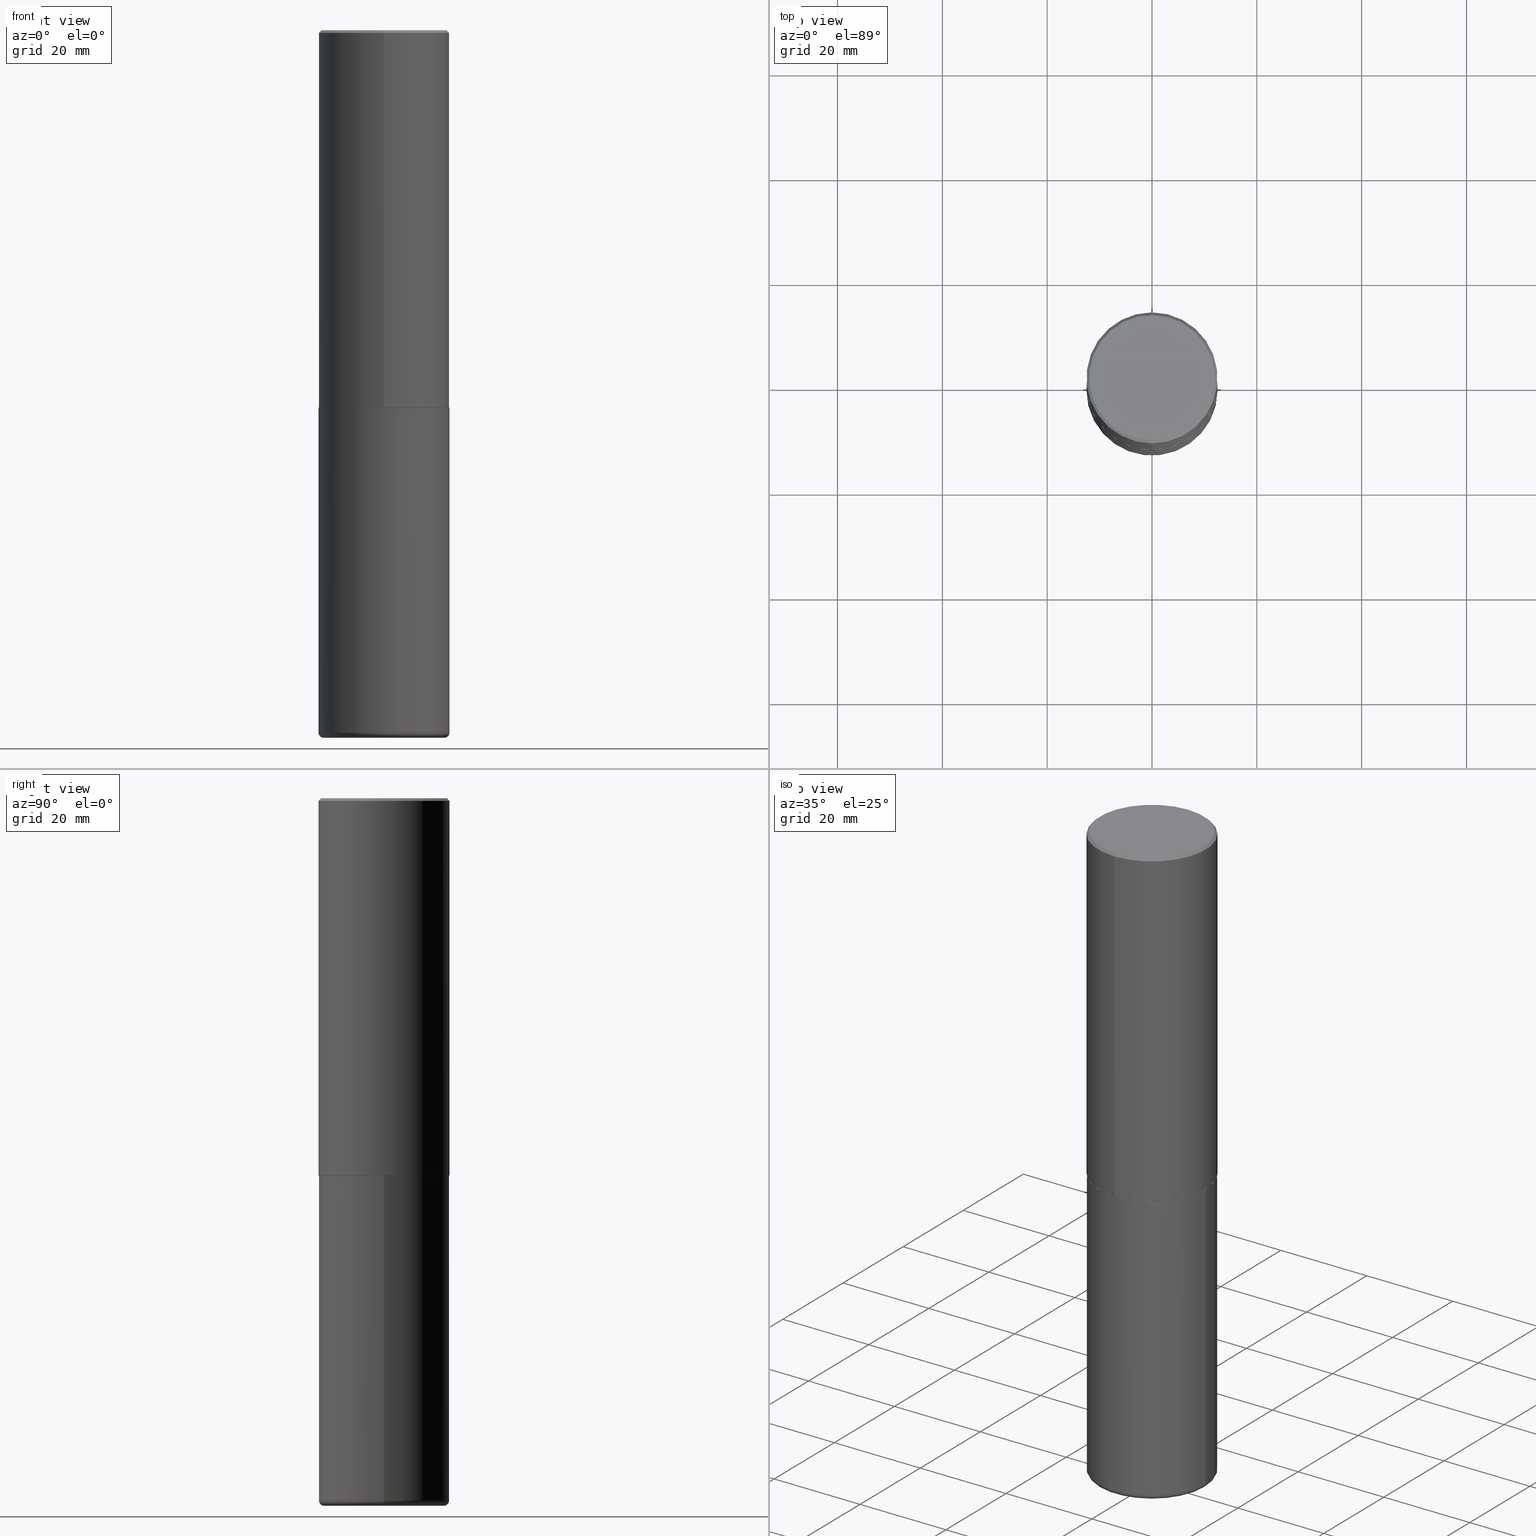
[diagram: canonical four-view strip — front | top / right | iso, engineering-drawing reading convention]
A machine part, canonical four-view strip (front | top / right | iso — engineering-drawing reading convention). The complete STEP part file that produces these views, byte-faithful:
ISO-10303-21;
HEADER;
FILE_DESCRIPTION (( 'STEP AP203' ),
    '1' );
FILE_NAME ('74871.STEP',
    '2024-05-02T19:25:47',
    ( '' ),
    ( '' ),
    'SwSTEP 2.0',
    'SolidWorks 2023',
    '' );
FILE_SCHEMA (( 'CONFIG_CONTROL_DESIGN' ));
ENDSEC;

DATA;
#1 = DATE_AND_TIME ( #23, #417 ) ;
#2 = CARTESIAN_POINT ( 'NONE',  ( -3.376394089603258656E-15, -0.4921500000000000874, -0.01999999999999838712 ) ) ;
#3 = APPROVAL_STATUS ( 'not_yet_approved' ) ;
#4 = DIRECTION ( 'NONE',  ( -2.445468806185136877E-29, 3.491481338843145188E-15, 1.000000000000000000 ) ) ;
#5 = AXIS2_PLACEMENT_3D ( 'NONE', #224, #93, #196 ) ;
#6 = VECTOR ( 'NONE', #58, 39.37007874015748143 ) ;
#7 = CARTESIAN_POINT ( 'NONE',  ( 0.000000000000000000, 0.000000000000000000, 0.000000000000000000 ) ) ;
#8 = VECTOR ( 'NONE', #300, 39.37007874015748143 ) ;
#9 = DESIGN_CONTEXT ( 'detailed design', #323, 'design' ) ;
#10 = CARTESIAN_POINT ( 'NONE',  ( 6.929045905378983914E-29, -9.894783109142616722E-15, -2.833700000000000330 ) ) ;
#11 = CARTESIAN_POINT ( 'NONE',  ( -3.436665081823228329E-15, -0.4921500000000101904, -2.833699999999998997 ) ) ;
#12 = PLANE ( 'NONE',  #49 ) ;
#13 = DIRECTION ( 'NONE',  ( -6.982962677686265922E-15, -1.000000000000000000, 3.495297233588267070E-15 ) ) ;
#14 = VERTEX_POINT ( 'NONE', #50 ) ;
#15 = ORIENTED_EDGE ( 'NONE', *, *, #271, .F. ) ;
#16 = LINE ( 'NONE', #142, #185 ) ;
#17 = ORIENTED_EDGE ( 'NONE', *, *, #106, .T. ) ;
#18 = FACE_OUTER_BOUND ( 'NONE', #134, .T. ) ;
#19 = AXIS2_PLACEMENT_3D ( 'NONE', #354, #125, #321 ) ;
#20 = ORIENTED_EDGE ( 'NONE', *, *, #337, .T. ) ;
#21 = EDGE_CURVE ( 'NONE', #303, #226, #397, .T. ) ;
#22 = LINE ( 'NONE', #170, #8 ) ;
#23 = CALENDAR_DATE ( 2024, 2, 5 ) ;
#24 = CONICAL_SURFACE ( 'NONE', #261, 0.4911499999999999755, 0.7853981633977213939 ) ;
#25 = CIRCLE ( 'NONE', #388, 0.4921500000000003094 ) ;
#26 = COORDINATED_UNIVERSAL_TIME_OFFSET ( 5, 0, .BEHIND. ) ;
#27 = COORDINATED_UNIVERSAL_TIME_OFFSET ( 5, 0, .BEHIND. ) ;
#28 = DIRECTION ( 'NONE',  ( -2.445229172240879899E-29, 3.491824508290438219E-15, 1.000000000000000000 ) ) ;
#29 = DATE_AND_TIME ( #322, #363 ) ;
#30 = DIRECTION ( 'NONE',  ( 1.000000000000000000, -6.982962677686266711E-15, 0.000000000000000000 ) ) ;
#31 = PERSON_AND_ORGANIZATION_ROLE ( 'design_supplier' ) ;
#32 = DIRECTION ( 'NONE',  ( -6.982962677686265922E-15, -1.000000000000000000, 3.330506545156063891E-15 ) ) ;
#33 = AXIS2_PLACEMENT_3D ( 'NONE', #229, #35, #218 ) ;
#34 = DIRECTION ( 'NONE',  ( 1.000000000000000000, -6.982962677686262766E-15, 4.883557194083111219E-29 ) ) ;
#35 = DIRECTION ( 'NONE',  ( 2.445229172240879339E-29, -3.491824508290438613E-15, -1.000000000000000000 ) ) ;
#36 = ORIENTED_EDGE ( 'NONE', *, *, #337, .F. ) ;
#37 = VERTEX_POINT ( 'NONE', #85 ) ;
#38 = DIRECTION ( 'NONE',  ( -6.982962677686266711E-15, -1.000000000000000000, 3.491824508290437824E-15 ) ) ;
#39 = ADVANCED_FACE ( 'NONE', ( #200 ), #266, .T. ) ;
#40 = CIRCLE ( 'NONE', #19, 0.4921499999999999764 ) ;
#41 = CARTESIAN_POINT ( 'NONE',  ( 6.931491134551223323E-29, -9.898274933650907147E-15, -2.834700000000000220 ) ) ;
#42 = LOCAL_TIME ( 15, 25, 47.00000000000000000, #52 ) ;
#43 = ORIENTED_EDGE ( 'NONE', *, *, #51, .F. ) ;
#44 = CONICAL_SURFACE ( 'NONE', #351, 0.4911499999999999755, 0.7853981633977213939 ) ;
#45 = DIRECTION ( 'NONE',  ( -2.445229172240879899E-29, 3.491824508290438613E-15, 1.000000000000000000 ) ) ;
#46 = CARTESIAN_POINT ( 'NONE',  ( -3.436665081823297354E-15, -0.4921500000000001984, 1.718501431755139742E-15 ) ) ;
#47 = EDGE_LOOP ( 'NONE', ( #72, #372, #393, #110 ) ) ;
#48 = CARTESIAN_POINT ( 'NONE',  ( 3.493383360364602601E-15, 0.4911499999999900390, -2.834700000000001996 ) ) ;
#49 = AXIS2_PLACEMENT_3D ( 'NONE', #41, #79, #139 ) ;
#50 = CARTESIAN_POINT ( 'NONE',  ( -0.4921499999999999764, -1.066154447716645114E-14, -2.834700000000000220 ) ) ;
#51 = EDGE_CURVE ( 'NONE', #149, #235, #395, .T. ) ;
#52 = COORDINATED_UNIVERSAL_TIME_OFFSET ( 5, 0, .BEHIND. ) ;
#53 = DIRECTION ( 'NONE',  ( -6.982962677686265922E-15, -1.000000000000000000, 3.337287582609300506E-15 ) ) ;
#54 = ADVANCED_FACE ( 'NONE', ( #334 ), #44, .T. ) ;
#55 = AXIS2_PLACEMENT_3D ( 'NONE', #74, #113, #234 ) ;
#56 = PERSON_AND_ORGANIZATION ( #158, #309 ) ;
#57 = EDGE_CURVE ( 'NONE', #400, #14, #315, .T. ) ;
#58 = DIRECTION ( 'NONE',  ( -4.937700262165896205E-15, -0.7071067811867381980, 0.7071067811863568364 ) ) ;
#59 = PERSON_AND_ORGANIZATION_ROLE ( 'creator' ) ;
#60 = CARTESIAN_POINT ( 'NONE',  ( 1.290131523391030870E-28, -1.841965895120090052E-14, -5.275600000000000733 ) ) ;
#61 = EDGE_CURVE ( 'NONE', #368, #149, #341, .T. ) ;
#62 = DIRECTION ( 'NONE',  ( 2.438088387897960049E-29, -3.491481338843145188E-15, -1.000000000000000000 ) ) ;
#63 = DIRECTION ( 'NONE',  ( -2.445468806185136597E-29, 3.491481338843145583E-15, 1.000000000000000000 ) ) ;
#64 = CC_DESIGN_PERSON_AND_ORGANIZATION_ASSIGNMENT ( #222, #31, ( #98 ) ) ;
#65 = DIRECTION ( 'NONE',  ( 7.105427357601001859E-15, 1.000000000000000000, -3.491481338843145583E-15 ) ) ;
#66 = EDGE_LOOP ( 'NONE', ( #371, #391, #138, #176 ) ) ;
#67 = CLOSED_SHELL ( 'NONE', ( #320, #374, #277, #190, #151, #81 ) ) ;
#68 = CARTESIAN_POINT ( 'NONE',  ( 4.890458344481786073E-31, -6.983649016580912824E-17, -0.02000000000000010797 ) ) ;
#69 = ORIENTED_EDGE ( 'NONE', *, *, #78, .T. ) ;
#70 = FACE_OUTER_BOUND ( 'NONE', #47, .T. ) ;
#71 = DIRECTION ( 'NONE',  ( -6.982962677686265922E-15, -1.000000000000000000, 3.495297233588267070E-15 ) ) ;
#72 = ORIENTED_EDGE ( 'NONE', *, *, #144, .T. ) ;
#73 = AXIS2_PLACEMENT_3D ( 'NONE', #175, #80, #209 ) ;
#74 = CARTESIAN_POINT ( 'NONE',  ( 6.931491134551223323E-29, -9.898274933650907147E-15, -2.834700000000000220 ) ) ;
#75 = EDGE_LOOP ( 'NONE', ( #408, #183 ) ) ;
#76 = ORIENTED_EDGE ( 'NONE', *, *, #150, .F. ) ;
#77 = AXIS2_PLACEMENT_3D ( 'NONE', #302, #109, #344 ) ;
#78 = EDGE_CURVE ( 'NONE', #289, #105, #287, .T. ) ;
#79 = DIRECTION ( 'NONE',  ( -2.445229172240879339E-29, 3.491824508290438613E-15, 1.000000000000000000 ) ) ;
#80 = DIRECTION ( 'NONE',  ( -2.445468806185136597E-29, 3.491481338843145583E-15, 1.000000000000000000 ) ) ;
#81 = ADVANCED_FACE ( 'NONE', ( #392 ), #356, .T. ) ;
#82 = CC_DESIGN_PERSON_AND_ORGANIZATION_ASSIGNMENT ( #145, #91, ( #98 ) ) ;
#83 = ORIENTED_EDGE ( 'NONE', *, *, #168, .T. ) ;
#84 = MANIFOLD_SOLID_BREP ( 'Body-Move/Copy2[1]', #67 ) ;
#85 = CARTESIAN_POINT ( 'NONE',  ( 3.436665081823296565E-15, 0.4921499999999999764, -0.02000000000000182535 ) ) ;
#86 = AXIS2_PLACEMENT_3D ( 'NONE', #367, #211, #13 ) ;
#87 = PERSON_AND_ORGANIZATION ( #158, #309 ) ;
#88 = CARTESIAN_POINT ( 'NONE',  ( 0.000000000000000000, 0.000000000000000000, 0.000000000000000000 ) ) ;
#89 = CARTESIAN_POINT ( 'NONE',  ( 6.932170424893007423E-29, -9.897302151218665974E-15, -2.834700000000000220 ) ) ;
#90 = DIRECTION ( 'NONE',  ( -2.445468806185136597E-29, 3.491481338843145583E-15, 1.000000000000000000 ) ) ;
#91 = PERSON_AND_ORGANIZATION_ROLE ( 'creator' ) ;
#92 = APPROVAL_PERSON_ORGANIZATION ( #355, #156, #410 ) ;
#93 = DIRECTION ( 'NONE',  ( -6.982962677686266711E-15, -1.000000000000000000, 3.491481338843145583E-15 ) ) ;
#94 = ORIENTED_EDGE ( 'NONE', *, *, #313, .T. ) ;
#95 = FACE_OUTER_BOUND ( 'NONE', #182, .T. ) ;
#96 = CARTESIAN_POINT ( 'NONE',  ( -3.376394089603258656E-15, -0.4921500000000000874, -0.01999999999999838712 ) ) ;
#97 = ORIENTED_EDGE ( 'NONE', *, *, #379, .F. ) ;
#98 = PRODUCT_DEFINITION_FORMATION_WITH_SPECIFIED_SOURCE ( 'ANY', '', #172, .NOT_KNOWN. ) ;
#99 = CARTESIAN_POINT ( 'NONE',  ( 6.931491134551223323E-29, -9.898274933650907147E-15, -2.834700000000000220 ) ) ;
#100 = ORIENTED_EDGE ( 'NONE', *, *, #271, .T. ) ;
#101 = DIRECTION ( 'NONE',  ( -2.445229172240879899E-29, 3.491824508290438219E-15, 1.000000000000000000 ) ) ;
#102 = ORIENTED_EDGE ( 'NONE', *, *, #308, .T. ) ;
#103 = CARTESIAN_POINT ( 'NONE',  ( 0.000000000000000000, 0.000000000000000000, 0.000000000000000000 ) ) ;
#104 = ORIENTED_EDGE ( 'NONE', *, *, #21, .F. ) ;
#105 = VERTEX_POINT ( 'NONE', #221 ) ;
#106 = EDGE_CURVE ( 'NONE', #226, #241, #117, .T. ) ;
#107 = ORIENTED_EDGE ( 'NONE', *, *, #197, .F. ) ;
#108 = AXIS2_PLACEMENT_3D ( 'NONE', #299, #65, #298 ) ;
#109 = DIRECTION ( 'NONE',  ( -2.445468806185136597E-29, 3.491481338843145583E-15, 1.000000000000000000 ) ) ;
#110 = ORIENTED_EDGE ( 'NONE', *, *, #168, .F. ) ;
#111 = AXIS2_PLACEMENT_3D ( 'NONE', #198, #101, #247 ) ;
#112 = ORIENTED_EDGE ( 'NONE', *, *, #411, .T. ) ;
#113 = DIRECTION ( 'NONE',  ( -2.445229172240879899E-29, 3.491824508290438219E-15, 1.000000000000000000 ) ) ;
#114 = SECURITY_CLASSIFICATION_LEVEL ( 'unclassified' ) ;
#115 = DATE_TIME_ROLE ( 'classification_date' ) ;
#116 = APPROVAL_PERSON_ORGANIZATION ( #56, #237, #216 ) ;
#117 = CIRCLE ( 'NONE', #206, 0.4921500000000003094 ) ;
#118 = EDGE_CURVE ( 'NONE', #132, #400, #260, .T. ) ;
#119 = LENGTH_MEASURE_WITH_UNIT ( LENGTH_MEASURE( 0.02539999999999999897 ), #352 );
#120 = CARTESIAN_POINT ( 'NONE',  ( 1.299766670487400442E-28, -1.855722331595132604E-14, -5.315000000000001279 ) ) ;
#121 = APPROVAL_DATE_TIME ( #387, #156 ) ;
#122 = DIRECTION ( 'NONE',  ( -2.445468806185136597E-29, 3.491481338843145583E-15, 1.000000000000000000 ) ) ;
#123 = CIRCLE ( 'NONE', #111, 0.4911499999999999755 ) ;
#124 = AXIS2_PLACEMENT_3D ( 'NONE', #347, #133, #311 ) ;
#125 = DIRECTION ( 'NONE',  ( -2.445468806185136597E-29, 3.491481338843145583E-15, 1.000000000000000000 ) ) ;
#126 = ORIENTED_EDGE ( 'NONE', *, *, #118, .T. ) ;
#127 = DIRECTION ( 'NONE',  ( -2.445468806185136597E-29, 3.491481338843145583E-15, 1.000000000000000000 ) ) ;
#128 = DIRECTION ( 'NONE',  ( -6.982962677686266711E-15, -1.000000000000000000, 3.491824508290437824E-15 ) ) ;
#129 = FACE_OUTER_BOUND ( 'NONE', #210, .T. ) ;
#130 = ADVANCED_FACE ( 'NONE', ( #191 ), #383, .T. ) ;
#131 = CARTESIAN_POINT ( 'NONE',  ( -0.4921500000000000874, -1.492272287715756368E-14, -5.275600000000000733 ) ) ;
#132 = VERTEX_POINT ( 'NONE', #358 ) ;
#133 = DIRECTION ( 'NONE',  ( -2.445229172240879899E-29, 3.491824508290438219E-15, 1.000000000000000000 ) ) ;
#134 = EDGE_LOOP ( 'NONE', ( #15, #304 ) ) ;
#135 = DIRECTION ( 'NONE',  ( 4.937700262164532265E-15, 0.7071067811865429098, -0.7071067811865521247 ) ) ;
#136 = CARTESIAN_POINT ( 'NONE',  ( 0.000000000000000000, 0.000000000000000000, 0.000000000000000000 ) ) ;
#137 = EDGE_CURVE ( 'NONE', #132, #245, #360, .T. ) ;
#138 = ORIENTED_EDGE ( 'NONE', *, *, #379, .T. ) ;
#139 = DIRECTION ( 'NONE',  ( -6.982962677686265922E-15, -1.000000000000000000, 3.491824508290438613E-15 ) ) ;
#140 = EDGE_LOOP ( 'NONE', ( #43, #231, #102, #160 ) ) ;
#141 = DIRECTION ( 'NONE',  ( -4.851104656540949287E-15, -0.7071067811865477948, -0.7071067811865472397 ) ) ;
#142 = CARTESIAN_POINT ( 'NONE',  ( 3.436665081823296565E-15, 0.4921499999999999764, -0.02000000000000182535 ) ) ;
#143 = CARTESIAN_POINT ( 'NONE',  ( -6.892706176078369160E-45, 9.842889422106222579E-31, 2.818838518011663701E-16 ) ) ;
#144 = EDGE_CURVE ( 'NONE', #105, #289, #184, .T. ) ;
#145 = PERSON_AND_ORGANIZATION ( #158, #309 ) ;
#146 = CIRCLE ( 'NONE', #240, 0.4921499999999999764 ) ;
#147 = AXIS2_PLACEMENT_3D ( 'NONE', #166, #62, #188 ) ;
#148 = CIRCLE ( 'NONE', #124, 0.4721499999999997921 ) ;
#149 = VERTEX_POINT ( 'NONE', #154 ) ;
#150 = EDGE_CURVE ( 'NONE', #241, #226, #25, .T. ) ;
#151 = ADVANCED_FACE ( 'NONE', ( #95 ), #165, .T. ) ;
#152 = ORIENTED_EDGE ( 'NONE', *, *, #144, .F. ) ;
#153 = VECTOR ( 'NONE', #378, 39.37007874015748143 ) ;
#154 = CARTESIAN_POINT ( 'NONE',  ( -3.307789109625542536E-15, -0.4721499999999997921, 1.930548793390495776E-15 ) ) ;
#155 = APPROVAL_STATUS ( 'not_yet_approved' ) ;
#156 = APPROVAL ( #155, 'UNSPECIFIED' ) ;
#157 = DIRECTION ( 'NONE',  ( 6.982962677686265922E-15, 1.000000000000000000, -3.495297233588267070E-15 ) ) ;
#158 = PERSON ( 'UNSPECIFIED', 'UNSPECIFIED', 'UNSPECIFIED', ('UNSPECIFIED'), ('UNSPECIFIED'), ('UNSPECIFIED') ) ;
#159 = CARTESIAN_POINT ( 'NONE',  ( 6.929045905378983914E-29, -9.894783109142616722E-15, -2.833700000000000330 ) ) ;
#160 = ORIENTED_EDGE ( 'NONE', *, *, #246, .T. ) ;
#161 = VECTOR ( 'NONE', #45, 39.37007874015748143 ) ;
#162 = APPROVAL_ROLE ( '' ) ;
#163 = AXIS2_PLACEMENT_3D ( 'NONE', #143, #164, #389 ) ;
#164 = DIRECTION ( 'NONE',  ( -2.445229172240879899E-29, 3.491824508290438219E-15, 1.000000000000000000 ) ) ;
#165 = TOROIDAL_SURFACE ( 'NONE', #318, 0.4527499999999999858, 0.03940000000000030284 ) ;
#166 = CARTESIAN_POINT ( 'NONE',  ( 4.039873082139847440E-29, -3.138529362965696164E-14, -5.315000000000001279 ) ) ;
#167 = DIRECTION ( 'NONE',  ( -2.445229172240879899E-29, 3.491824508290438219E-15, 1.000000000000000000 ) ) ;
#168 = EDGE_CURVE ( 'NONE', #105, #132, #230, .T. ) ;
#169 = DIRECTION ( 'NONE',  ( 1.000000000000000000, -6.982962677686265922E-15, 0.000000000000000000 ) ) ;
#170 = CARTESIAN_POINT ( 'NONE',  ( 3.496936074043333686E-15, 0.4921500000000001984, -1.718501431755139742E-15 ) ) ;
#171 = ORIENTED_EDGE ( 'NONE', *, *, #197, .T. ) ;
#172 = PRODUCT ( '74871', '74871', '', ( #319 ) ) ;
#173 = ORIENTED_EDGE ( 'NONE', *, *, #21, .T. ) ;
#174 = CARTESIAN_POINT ( 'NONE',  ( -3.429682119145539948E-15, -0.4911500000000098565, -2.834699999999998443 ) ) ;
#175 = CARTESIAN_POINT ( 'NONE',  ( 1.290131523391030870E-28, -1.841965895120090052E-14, -5.275600000000000733 ) ) ;
#176 = ORIENTED_EDGE ( 'NONE', *, *, #308, .F. ) ;
#177 = CARTESIAN_POINT ( 'NONE',  ( 3.366835455046432873E-15, 0.4721499999999997921, -1.366781089788163134E-15 ) ) ;
#178 = PRODUCT_DEFINITION ( 'UNKNOWN', '', #98, #9 ) ;
#179 = DIRECTION ( 'NONE',  ( -2.445468806185136597E-29, 3.491481338843145583E-15, 1.000000000000000000 ) ) ;
#180 = CC_DESIGN_APPROVAL ( #237, ( #178 ) ) ;
#181 = CARTESIAN_POINT ( 'NONE',  ( -3.429682119145539948E-15, -0.4911500000000098565, -2.834699999999998443 ) ) ;
#182 = EDGE_LOOP ( 'NONE', ( #339, #69, #83, #307 ) ) ;
#183 = ORIENTED_EDGE ( 'NONE', *, *, #380, .T. ) ;
#184 = CIRCLE ( 'NONE', #381, 0.4527499999999999858 ) ;
#185 = VECTOR ( 'NONE', #135, 39.37007874015748143 ) ;
#186 = EDGE_CURVE ( 'NONE', #14, #245, #146, .T. ) ;
#187 = CARTESIAN_POINT ( 'NONE',  ( 3.489830646685800520E-15, 0.4911499999999900390, -2.834700000000001996 ) ) ;
#188 = DIRECTION ( 'NONE',  ( -1.000000000000000000, 6.982962677686265922E-15, -4.876176775795935793E-29 ) ) ;
#189 = APPROVAL ( #359, 'UNSPECIFIED' ) ;
#190 = ADVANCED_FACE ( 'NONE', ( #265 ), #332, .T. ) ;
#191 = FACE_OUTER_BOUND ( 'NONE', #66, .T. ) ;
#192 = DIRECTION ( 'NONE',  ( 5.024295867789434219E-15, 0.7071067811867430830, 0.7071067811863519514 ) ) ;
#193 = DIRECTION ( 'NONE',  ( -2.445229172240879899E-29, 3.491824508290438219E-15, 1.000000000000000000 ) ) ;
#194 = CARTESIAN_POINT ( 'NONE',  ( 1.299766670487400442E-28, -1.855722331595132604E-14, -5.315000000000001279 ) ) ;
#195 = CC_DESIGN_SECURITY_CLASSIFICATION ( #207, ( #98 ) ) ;
#196 = DIRECTION ( 'NONE',  ( 1.000000000000000000, -6.982962677686280910E-15, 0.000000000000000000 ) ) ;
#197 = EDGE_CURVE ( 'NONE', #245, #14, #40, .T. ) ;
#198 = CARTESIAN_POINT ( 'NONE',  ( 6.931491134551223323E-29, -9.898274933650907147E-15, -2.834700000000000220 ) ) ;
#199 = DIRECTION ( 'NONE',  ( -2.445229172240879899E-29, 3.491824508290438219E-15, 1.000000000000000000 ) ) ;
#200 = FACE_OUTER_BOUND ( 'NONE', #396, .T. ) ;
#201 = PRODUCT_RELATED_PRODUCT_CATEGORY ( 'detail', '', ( #172 ) ) ;
#202 = AXIS2_PLACEMENT_3D ( 'NONE', #7, #63, #225 ) ;
#203 = EDGE_LOOP ( 'NONE', ( #17, #263, #97, #36 ) ) ;
#204 = LOCAL_TIME ( 15, 25, 47.00000000000000000, #369 ) ;
#205 = EDGE_CURVE ( 'NONE', #289, #400, #214, .T. ) ;
#206 = AXIS2_PLACEMENT_3D ( 'NONE', #10, #193, #257 ) ;
#207 = SECURITY_CLASSIFICATION ( '', '', #114 ) ;
#208 = CYLINDRICAL_SURFACE ( 'NONE', #77, 0.4921499999999999764 ) ;
#209 = DIRECTION ( 'NONE',  ( 1.000000000000000000, -6.982962677686266711E-15, 0.000000000000000000 ) ) ;
#210 = EDGE_LOOP ( 'NONE', ( #100, #112, #335, #104 ) ) ;
#211 = DIRECTION ( 'NONE',  ( -2.445229172240879899E-29, 3.491824508290438219E-15, 1.000000000000000000 ) ) ;
#212 = CALENDAR_DATE ( 2024, 2, 5 ) ;
#213 = CC_DESIGN_DATE_AND_TIME_ASSIGNMENT ( #1, #384, ( #178 ) ) ;
#214 = CIRCLE ( 'NONE', #108, 0.03940000000000026814 ) ;
#215 = VECTOR ( 'NONE', #4, 39.37007874015748143 ) ;
#216 = APPROVAL_ROLE ( '' ) ;
#217 = PRODUCT_DEFINITION_SHAPE ( 'NONE', 'NONE',  #178 ) ;
#218 = DIRECTION ( 'NONE',  ( 6.982962677686265922E-15, 1.000000000000000000, -3.491824508290438613E-15 ) ) ;
#219 = ADVANCED_FACE ( 'NONE', ( #394 ), #324, .F. ) ;
#220 = DIRECTION ( 'NONE',  ( 1.000000000000000000, 0.000000000000000000, 0.000000000000000000 ) ) ;
#221 = CARTESIAN_POINT ( 'NONE',  ( 0.4527499999999999858, -2.171875966827378497E-14, -5.315000000000001279 ) ) ;
#222 = PERSON_AND_ORGANIZATION ( #158, #309 ) ;
#223 = MANIFOLD_SOLID_BREP ( 'Body-Move/Copy2[2]', #280 ) ;
#224 = CARTESIAN_POINT ( 'NONE',  ( 0.4527499999999999858, -2.158119530352335944E-14, -5.275600000000000733 ) ) ;
#225 = DIRECTION ( 'NONE',  ( 1.000000000000000000, -6.982962677686265922E-15, 4.876176775795935793E-29 ) ) ;
#226 = VERTEX_POINT ( 'NONE', #11 ) ;
#227 = CALENDAR_DATE ( 2024, 2, 5 ) ;
#228 = ADVANCED_FACE ( 'NONE', ( #129 ), #24, .T. ) ;
#229 = CARTESIAN_POINT ( 'NONE',  ( 3.297005828269569180E-15, 0.4721499999999997921, -1.507723015688746393E-15 ) ) ;
#230 = CIRCLE ( 'NONE', #5, 0.03940000000000026814 ) ;
#231 = ORIENTED_EDGE ( 'NONE', *, *, #61, .F. ) ;
#232 = DIRECTION ( 'NONE',  ( 1.000000000000000000, -6.982962677686262766E-15, 4.883557194083111219E-29 ) ) ;
#233 = ORIENTED_EDGE ( 'NONE', *, *, #137, .T. ) ;
#234 = DIRECTION ( 'NONE',  ( -6.982962677686265922E-15, -1.000000000000000000, 3.337287582609300506E-15 ) ) ;
#235 = VERTEX_POINT ( 'NONE', #2 ) ;
#236 = EDGE_LOOP ( 'NONE', ( #361, #94, #173, #76 ) ) ;
#237 = APPROVAL ( #3, 'UNSPECIFIED' ) ;
#238 = CARTESIAN_POINT ( 'NONE',  ( 0.4921499999999999764, -1.333396723304196175E-14, -2.834700000000000220 ) ) ;
#239 = ORIENTED_EDGE ( 'NONE', *, *, #78, .F. ) ;
#240 = AXIS2_PLACEMENT_3D ( 'NONE', #89, #127, #169 ) ;
#241 = VERTEX_POINT ( 'NONE', #306 ) ;
#242 = AXIS2_PLACEMENT_3D ( 'NONE', #60, #385, #30 ) ;
#243 =( GEOMETRIC_REPRESENTATION_CONTEXT ( 3 ) GLOBAL_UNCERTAINTY_ASSIGNED_CONTEXT ( ( #316 ) ) GLOBAL_UNIT_ASSIGNED_CONTEXT ( ( #357, #353, #283 ) ) REPRESENTATION_CONTEXT ( 'NONE', 'WORKASPACE' ) );
#244 = FACE_OUTER_BOUND ( 'NONE', #297, .T. ) ;
#245 = VERTEX_POINT ( 'NONE', #238 ) ;
#246 = EDGE_CURVE ( 'NONE', #37, #235, #285, .T. ) ;
#247 = DIRECTION ( 'NONE',  ( -6.982962677686265922E-15, -1.000000000000000000, 3.337287582609300506E-15 ) ) ;
#248 = PERSON_AND_ORGANIZATION ( #158, #309 ) ;
#249 = ADVANCED_FACE ( 'NONE', ( #18 ), #12, .F. ) ;
#250 = DIRECTION ( 'NONE',  ( -2.445229172240879899E-29, 3.491824508290438219E-15, 1.000000000000000000 ) ) ;
#251 = ORIENTED_EDGE ( 'NONE', *, *, #57, .F. ) ;
#252 = EDGE_CURVE ( 'NONE', #400, #132, #290, .T. ) ;
#253 = DATE_AND_TIME ( #416, #42 ) ;
#254 = AXIS2_PLACEMENT_3D ( 'NONE', #103, #399, #38 ) ;
#255 = DIMENSIONAL_EXPONENTS ( 1.000000000000000000, 0.000000000000000000, 0.000000000000000000, 0.000000000000000000, 0.000000000000000000, 0.000000000000000000, 0.000000000000000000 ) ;
#256 = APPROVAL_DATE_TIME ( #29, #237 ) ;
#257 = DIRECTION ( 'NONE',  ( -6.982962677686265922E-15, -1.000000000000000000, 3.330506545156063891E-15 ) ) ;
#258 = DIRECTION ( 'NONE',  ( -2.445229172240879899E-29, 3.491824508290438219E-15, 1.000000000000000000 ) ) ;
#259 = AXIS2_PLACEMENT_3D ( 'NONE', #366, #199, #71 ) ;
#260 = CIRCLE ( 'NONE', #242, 0.4921499999999999209 ) ;
#261 = AXIS2_PLACEMENT_3D ( 'NONE', #268, #28, #292 ) ;
#262 = DIRECTION ( 'NONE',  ( -2.445468806185136597E-29, 3.491481338843145583E-15, 1.000000000000000000 ) ) ;
#263 = ORIENTED_EDGE ( 'NONE', *, *, #398, .T. ) ;
#264 = ORIENTED_EDGE ( 'NONE', *, *, #137, .F. ) ;
#265 = FACE_OUTER_BOUND ( 'NONE', #404, .T. ) ;
#266 = CYLINDRICAL_SURFACE ( 'NONE', #349, 0.4921500000000001984 ) ;
#267 = EDGE_LOOP ( 'NONE', ( #171, #279 ) ) ;
#268 = CARTESIAN_POINT ( 'NONE',  ( 6.931491134551223323E-29, -9.898274933650907147E-15, -2.834700000000000220 ) ) ;
#269 = VERTEX_POINT ( 'NONE', #48 ) ;
#270 = DIRECTION ( 'NONE',  ( 2.438088387897960049E-29, -3.491481338843145188E-15, -1.000000000000000000 ) ) ;
#271 = EDGE_CURVE ( 'NONE', #303, #269, #123, .T. ) ;
#272 = ORIENTED_EDGE ( 'NONE', *, *, #150, .T. ) ;
#273 = APPROVAL_DATE_TIME ( #301, #189 ) ;
#274 = FACE_OUTER_BOUND ( 'NONE', #203, .T. ) ;
#275 = EDGE_LOOP ( 'NONE', ( #152, #239 ) ) ;
#276 = FACE_OUTER_BOUND ( 'NONE', #140, .T. ) ;
#277 = ADVANCED_FACE ( 'NONE', ( #376 ), #370, .F. ) ;
#278 = CIRCLE ( 'NONE', #86, 0.4921500000000000319 ) ;
#279 = ORIENTED_EDGE ( 'NONE', *, *, #186, .T. ) ;
#280 = CLOSED_SHELL ( 'NONE', ( #228, #288, #130, #282, #39, #54, #249, #219 ) ) ;
#281 = DIRECTION ( 'NONE',  ( 2.445229172240879899E-29, -3.491824508290438219E-15, -1.000000000000000000 ) ) ;
#282 = ADVANCED_FACE ( 'NONE', ( #276 ), #296, .T. ) ;
#283 =( NAMED_UNIT ( * ) SI_UNIT ( $, .STERADIAN. ) SOLID_ANGLE_UNIT ( ) );
#284 = DIRECTION ( 'NONE',  ( 0.000000000000000000, 0.000000000000000000, 1.000000000000000000 ) ) ;
#285 = CIRCLE ( 'NONE', #259, 0.4921500000000000319 ) ;
#286 = CC_DESIGN_APPROVAL ( #189, ( #207 ) ) ;
#287 = CIRCLE ( 'NONE', #310, 0.4527499999999999858 ) ;
#288 = ADVANCED_FACE ( 'NONE', ( #274 ), #406, .T. ) ;
#289 = VERTEX_POINT ( 'NONE', #409 ) ;
#290 = CIRCLE ( 'NONE', #73, 0.4921499999999999209 ) ;
#291 = APPLICATION_PROTOCOL_DEFINITION ( 'international standard', 'config_control_design', 1994, #317 ) ;
#292 = DIRECTION ( 'NONE',  ( -6.982962677686265922E-15, -1.000000000000000000, 3.337287582609300506E-15 ) ) ;
#293 = COORDINATED_UNIVERSAL_TIME_OFFSET ( 5, 0, .BEHIND. ) ;
#294 = CARTESIAN_POINT ( 'NONE',  ( 0.4921499999999999764, -3.436665081823295777E-15, 2.399810400207969603E-29 ) ) ;
#295 = CARTESIAN_POINT ( 'NONE',  ( 1.290131523391030870E-28, -1.841965895120090052E-14, -5.275600000000000733 ) ) ;
#296 = CONICAL_SURFACE ( 'NONE', #373, 0.4921500000000000319, 0.7853981633974452814 ) ;
#297 = EDGE_LOOP ( 'NONE', ( #126, #325, #107, #264 ) ) ;
#298 = DIRECTION ( 'NONE',  ( -1.000000000000000000, 7.105427357601027102E-15, 0.000000000000000000 ) ) ;
#299 = CARTESIAN_POINT ( 'NONE',  ( -0.4527499999999999858, -1.520267671504704703E-14, -5.275600000000000733 ) ) ;
#300 = DIRECTION ( 'NONE',  ( -2.445229172240879899E-29, 3.491824508290438613E-15, 1.000000000000000000 ) ) ;
#301 = DATE_AND_TIME ( #227, #204 ) ;
#302 = CARTESIAN_POINT ( 'NONE',  ( 0.000000000000000000, 0.000000000000000000, 0.000000000000000000 ) ) ;
#303 = VERTEX_POINT ( 'NONE', #181 ) ;
#304 = ORIENTED_EDGE ( 'NONE', *, *, #313, .F. ) ;
#305 = DIRECTION ( 'NONE',  ( 6.982962677686265922E-15, 1.000000000000000000, -3.495297233588267070E-15 ) ) ;
#306 = CARTESIAN_POINT ( 'NONE',  ( 3.496936074043369579E-15, 0.4921499999999904840, -2.833700000000002106 ) ) ;
#307 = ORIENTED_EDGE ( 'NONE', *, *, #252, .F. ) ;
#308 = EDGE_CURVE ( 'NONE', #368, #37, #16, .T. ) ;
#309 = ORGANIZATION ( 'UNSPECIFIED', 'UNSPECIFIED', '' ) ;
#310 = AXIS2_PLACEMENT_3D ( 'NONE', #194, #262, #362 ) ;
#311 = DIRECTION ( 'NONE',  ( -6.982962677686265922E-15, -1.000000000000000000, 3.491824508290437824E-15 ) ) ;
#312 = CARTESIAN_POINT ( 'NONE',  ( -0.4921499999999999764, 3.496936074043332897E-15, -2.420853904668951509E-29 ) ) ;
#313 = EDGE_CURVE ( 'NONE', #269, #303, #340, .T. ) ;
#314 = PERSON_AND_ORGANIZATION ( #158, #309 ) ;
#315 = LINE ( 'NONE', #312, #153 ) ;
#316 = UNCERTAINTY_MEASURE_WITH_UNIT (LENGTH_MEASURE( 1.000000000000000082E-05 ), #357, 'distance_accuracy_value', 'NONE');
#317 = APPLICATION_CONTEXT ( 'configuration controlled 3d designs of mechanical parts and assemblies' ) ;
#318 = AXIS2_PLACEMENT_3D ( 'NONE', #295, #90, #34 ) ;
#319 = MECHANICAL_CONTEXT ( 'NONE', #317, 'mechanical' ) ;
#320 = ADVANCED_FACE ( 'NONE', ( #244 ), #208, .T. ) ;
#321 = DIRECTION ( 'NONE',  ( 1.000000000000000000, -6.982962677686265922E-15, 0.000000000000000000 ) ) ;
#322 = CALENDAR_DATE ( 2024, 2, 5 ) ;
#323 = APPLICATION_CONTEXT ( 'configuration controlled 3d designs of mechanical parts and assemblies' ) ;
#324 = PLANE ( 'NONE',  #33 ) ;
#325 = ORIENTED_EDGE ( 'NONE', *, *, #57, .T. ) ;
#326 = PERSON_AND_ORGANIZATION ( #158, #309 ) ;
#327 = CC_DESIGN_PERSON_AND_ORGANIZATION_ASSIGNMENT ( #248, #377, ( #207 ) ) ;
#328 = DIRECTION ( 'NONE',  ( 2.445229172240879899E-29, -3.491824508290438219E-15, -1.000000000000000000 ) ) ;
#329 = SHAPE_DEFINITION_REPRESENTATION ( #217, #343 ) ;
#330 = DIRECTION ( 'NONE',  ( 1.000000000000000000, -6.982962677686269077E-15, 0.000000000000000000 ) ) ;
#331 = VECTOR ( 'NONE', #192, 39.37007874015748143 ) ;
#332 = CYLINDRICAL_SURFACE ( 'NONE', #202, 0.4921499999999999764 ) ;
#333 = ORIENTED_EDGE ( 'NONE', *, *, #252, .T. ) ;
#334 = FACE_OUTER_BOUND ( 'NONE', #236, .T. ) ;
#335 = ORIENTED_EDGE ( 'NONE', *, *, #106, .F. ) ;
#336 = CARTESIAN_POINT ( 'NONE',  ( 4.890458344481786073E-31, -6.983649016580912824E-17, -0.02000000000000010797 ) ) ;
#337 = EDGE_CURVE ( 'NONE', #226, #235, #338, .T. ) ;
#338 = LINE ( 'NONE', #46, #161 ) ;
#339 = ORIENTED_EDGE ( 'NONE', *, *, #205, .F. ) ;
#340 = CIRCLE ( 'NONE', #55, 0.4911499999999999755 ) ;
#341 = CIRCLE ( 'NONE', #163, 0.4721499999999997921 ) ;
#342 = CC_DESIGN_APPROVAL ( #156, ( #98 ) ) ;
#343 = ADVANCED_BREP_SHAPE_REPRESENTATION ( '74871', ( #84, #223, #412 ), #243 ) ;
#344 = DIRECTION ( 'NONE',  ( 1.000000000000000000, -6.982962677686265922E-15, 4.876176775795935793E-29 ) ) ;
#345 = CARTESIAN_POINT ( 'NONE',  ( 6.932170424893007423E-29, -9.897302151218665974E-15, -2.834700000000000220 ) ) ;
#346 = ORIENTED_EDGE ( 'NONE', *, *, #398, .F. ) ;
#347 = CARTESIAN_POINT ( 'NONE',  ( -6.892706176078369160E-45, 9.842889422106222579E-31, 2.818838518011663701E-16 ) ) ;
#348 = AXIS2_PLACEMENT_3D ( 'NONE', #345, #270, #403 ) ;
#349 = AXIS2_PLACEMENT_3D ( 'NONE', #136, #167, #128 ) ;
#350 = TOROIDAL_SURFACE ( 'NONE', #407, 0.4527499999999999858, 0.03940000000000030284 ) ;
#351 = AXIS2_PLACEMENT_3D ( 'NONE', #99, #250, #53 ) ;
#352 =( LENGTH_UNIT ( ) NAMED_UNIT ( * ) SI_UNIT ( $, .METRE. ) );
#353 =( NAMED_UNIT ( * ) PLANE_ANGLE_UNIT ( ) SI_UNIT ( $, .RADIAN. ) );
#354 = CARTESIAN_POINT ( 'NONE',  ( 6.932170424893007423E-29, -9.897302151218665974E-15, -2.834700000000000220 ) ) ;
#355 = PERSON_AND_ORGANIZATION ( #158, #309 ) ;
#356 = PLANE ( 'NONE',  #147 ) ;
#357 =( CONVERSION_BASED_UNIT ( 'INCH', #119 ) LENGTH_UNIT ( ) NAMED_UNIT ( #255 ) );
#358 = CARTESIAN_POINT ( 'NONE',  ( 0.4921500000000000874, -2.185632403302419787E-14, -5.275600000000000733 ) ) ;
#359 = APPROVAL_STATUS ( 'not_yet_approved' ) ;
#360 = LINE ( 'NONE', #294, #215 ) ;
#361 = ORIENTED_EDGE ( 'NONE', *, *, #411, .F. ) ;
#362 = DIRECTION ( 'NONE',  ( 1.000000000000000000, -6.982962677686269077E-15, 0.000000000000000000 ) ) ;
#363 = LOCAL_TIME ( 15, 25, 47.00000000000000000, #26 ) ;
#364 = ORIENTED_EDGE ( 'NONE', *, *, #246, .F. ) ;
#365 = AXIS2_PLACEMENT_3D ( 'NONE', #68, #328, #157 ) ;
#366 = CARTESIAN_POINT ( 'NONE',  ( 4.890458344481786073E-31, -6.983649016580912824E-17, -0.02000000000000010797 ) ) ;
#367 = CARTESIAN_POINT ( 'NONE',  ( 4.890458344481786073E-31, -6.983649016580912824E-17, -0.02000000000000010797 ) ) ;
#368 = VERTEX_POINT ( 'NONE', #177 ) ;
#369 = COORDINATED_UNIVERSAL_TIME_OFFSET ( 5, 0, .BEHIND. ) ;
#370 = PLANE ( 'NONE',  #348 ) ;
#371 = ORIENTED_EDGE ( 'NONE', *, *, #380, .F. ) ;
#372 = ORIENTED_EDGE ( 'NONE', *, *, #205, .T. ) ;
#373 = AXIS2_PLACEMENT_3D ( 'NONE', #336, #281, #305 ) ;
#374 = ADVANCED_FACE ( 'NONE', ( #70 ), #350, .T. ) ;
#375 = CARTESIAN_POINT ( 'NONE',  ( 1.290131523391030870E-28, -1.841965895120090052E-14, -5.275600000000000733 ) ) ;
#376 = FACE_OUTER_BOUND ( 'NONE', #267, .T. ) ;
#377 = PERSON_AND_ORGANIZATION_ROLE ( 'classification_officer' ) ;
#378 = DIRECTION ( 'NONE',  ( -2.445468806185136877E-29, 3.491481338843145188E-15, 1.000000000000000000 ) ) ;
#379 = EDGE_CURVE ( 'NONE', #235, #37, #278, .T. ) ;
#380 = EDGE_CURVE ( 'NONE', #149, #368, #148, .T. ) ;
#381 = AXIS2_PLACEMENT_3D ( 'NONE', #120, #122, #330 ) ;
#382 = APPLICATION_PROTOCOL_DEFINITION ( 'international standard', 'config_control_design', 1994, #323 ) ;
#383 = CONICAL_SURFACE ( 'NONE', #365, 0.4921500000000000319, 0.7853981633974452814 ) ;
#384 = DATE_TIME_ROLE ( 'creation_date' ) ;
#385 = DIRECTION ( 'NONE',  ( -2.445468806185136597E-29, 3.491481338843145583E-15, 1.000000000000000000 ) ) ;
#386 = CC_DESIGN_PERSON_AND_ORGANIZATION_ASSIGNMENT ( #314, #418, ( #172 ) ) ;
#387 = DATE_AND_TIME ( #212, #390 ) ;
#388 = AXIS2_PLACEMENT_3D ( 'NONE', #159, #258, #32 ) ;
#389 = DIRECTION ( 'NONE',  ( -6.982962677686265922E-15, -1.000000000000000000, 3.491824508290437824E-15 ) ) ;
#390 = LOCAL_TIME ( 15, 25, 47.00000000000000000, #293 ) ;
#391 = ORIENTED_EDGE ( 'NONE', *, *, #51, .T. ) ;
#392 = FACE_OUTER_BOUND ( 'NONE', #275, .T. ) ;
#393 = ORIENTED_EDGE ( 'NONE', *, *, #118, .F. ) ;
#394 = FACE_OUTER_BOUND ( 'NONE', #75, .T. ) ;
#395 = LINE ( 'NONE', #96, #414 ) ;
#396 = EDGE_LOOP ( 'NONE', ( #346, #272, #20, #364 ) ) ;
#397 = LINE ( 'NONE', #174, #6 ) ;
#398 = EDGE_CURVE ( 'NONE', #241, #37, #22, .T. ) ;
#399 = DIRECTION ( 'NONE',  ( -2.445229172240879899E-29, 3.491824508290438219E-15, 1.000000000000000000 ) ) ;
#400 = VERTEX_POINT ( 'NONE', #131 ) ;
#401 = ORIENTED_EDGE ( 'NONE', *, *, #186, .F. ) ;
#402 = LINE ( 'NONE', #187, #331 ) ;
#403 = DIRECTION ( 'NONE',  ( -1.000000000000000000, 6.982962677686265922E-15, -4.876176775795935793E-29 ) ) ;
#404 = EDGE_LOOP ( 'NONE', ( #251, #333, #233, #401 ) ) ;
#405 = CC_DESIGN_PERSON_AND_ORGANIZATION_ASSIGNMENT ( #326, #59, ( #178 ) ) ;
#406 = CYLINDRICAL_SURFACE ( 'NONE', #254, 0.4921500000000001984 ) ;
#407 = AXIS2_PLACEMENT_3D ( 'NONE', #375, #179, #232 ) ;
#408 = ORIENTED_EDGE ( 'NONE', *, *, #61, .T. ) ;
#409 = CARTESIAN_POINT ( 'NONE',  ( -0.4527499999999999858, -1.513148197847751654E-14, -5.315000000000001279 ) ) ;
#410 = APPROVAL_ROLE ( '' ) ;
#411 = EDGE_CURVE ( 'NONE', #269, #241, #402, .T. ) ;
#412 = AXIS2_PLACEMENT_3D ( 'NONE', #88, #284, #220 ) ;
#413 = APPROVAL_PERSON_ORGANIZATION ( #87, #189, #162 ) ;
#414 = VECTOR ( 'NONE', #141, 39.37007874015748143 ) ;
#415 = CC_DESIGN_DATE_AND_TIME_ASSIGNMENT ( #253, #115, ( #207 ) ) ;
#416 = CALENDAR_DATE ( 2024, 2, 5 ) ;
#417 = LOCAL_TIME ( 15, 25, 47.00000000000000000, #27 ) ;
#418 = PERSON_AND_ORGANIZATION_ROLE ( 'design_owner' ) ;
ENDSEC;
END-ISO-10303-21;
